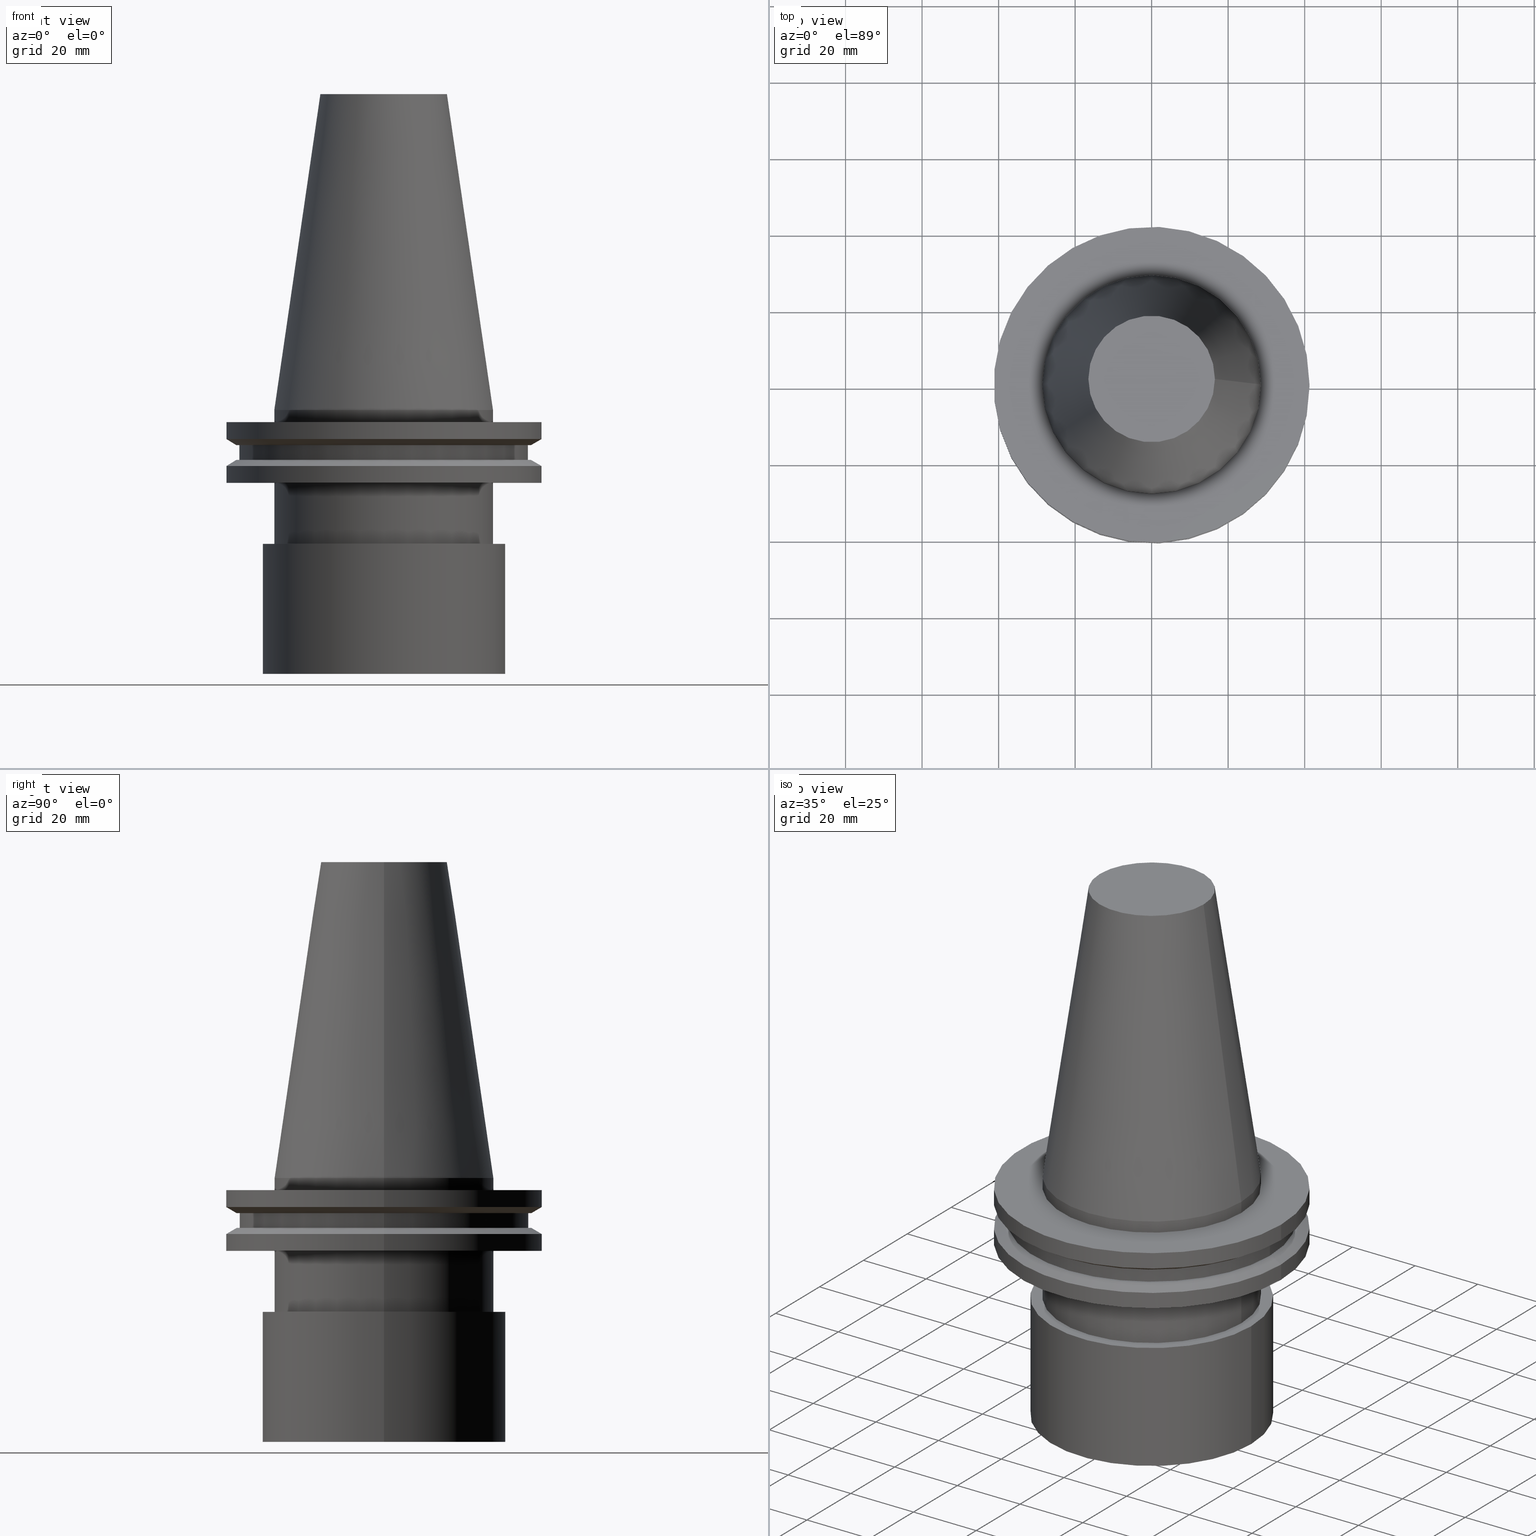
[diagram: canonical four-view strip — front | top / right | iso, engineering-drawing reading convention]
A machine part, canonical four-view strip (front | top / right | iso — engineering-drawing reading convention). The complete STEP part file that produces these views, byte-faithful:
ISO-10303-21;
HEADER;
FILE_DESCRIPTION (( 'STEP AP203' ),
    '1' );
FILE_NAME ('11.326.562.stp',
    '2022-03-09T14:32:26',
    ( '' ),
    ( '' ),
    'SwSTEP 2.0',
    'SolidWorks 2021',
    '' );
FILE_SCHEMA (( 'CONFIG_CONTROL_DESIGN' ));
ENDSEC;

DATA;
#1 = APPROVAL_ROLE ( '' ) ;
#2 = COORDINATED_UNIVERSAL_TIME_OFFSET ( 6, 0, .BEHIND. ) ;
#3 = AXIS2_PLACEMENT_3D ( 'NONE', #253, #117, #25 ) ;
#4 = CYLINDRICAL_SURFACE ( 'NONE', #65, 28.57499999999999218 ) ;
#5 = FACE_OUTER_BOUND ( 'NONE', #79, .T. ) ;
#6 = AXIS2_PLACEMENT_3D ( 'NONE', #147, #171, #203 ) ;
#7 = PRODUCT ( '11.326.562', '11.326.562', '', ( #36 ) ) ;
#8 = ADVANCED_FACE ( 'NONE', ( #379, #222 ), #256, .T. ) ;
#9 = ORGANIZATION ( 'UNSPECIFIED', 'UNSPECIFIED', '' ) ;
#10 = CALENDAR_DATE ( 2022, 9, 3 ) ;
#11 = EDGE_CURVE ( 'NONE', #383, #383, #277, .T. ) ;
#12 = EDGE_LOOP ( 'NONE', ( #283 ) ) ;
#13 = SHAPE_DEFINITION_REPRESENTATION ( #247, #284 ) ;
#14 = EDGE_LOOP ( 'NONE', ( #196 ) ) ;
#15 = CARTESIAN_POINT ( 'NONE',  ( 0.000000000000000000, 0.000000000000000000, -7.605276606597321631 ) ) ;
#16 = DIRECTION ( 'NONE',  ( -0.000000000000000000, -0.000000000000000000, 1.000000000000000000 ) ) ;
#17 = CIRCLE ( 'NONE', #269, 38.50419780457011854 ) ;
#18 = ADVANCED_FACE ( 'NONE', ( #235, #56 ), #62, .F. ) ;
#19 = DIRECTION ( 'NONE',  ( 1.000000000000000000, 0.000000000000000000, 0.000000000000000000 ) ) ;
#20 = ORIENTED_EDGE ( 'NONE', *, *, #69, .T. ) ;
#21 = CIRCLE ( 'NONE', #258, 28.57499999999999929 ) ;
#22 = DIRECTION ( 'NONE',  ( -0.000000000000000000, -0.000000000000000000, 1.000000000000000000 ) ) ;
#23 = CLOSED_SHELL ( 'NONE', ( #39, #366, #210, #28, #146, #115, #104, #318, #18, #8, #275, #127, #213, #137, #55, #102 ) ) ;
#24 = ORIENTED_EDGE ( 'NONE', *, *, #159, .F. ) ;
#25 = DIRECTION ( 'NONE',  ( 1.000000000000000000, 0.000000000000000000, 0.000000000000000000 ) ) ;
#26 = DIRECTION ( 'NONE',  ( -0.000000000000000000, -0.000000000000000000, 1.000000000000000000 ) ) ;
#27 = VERTEX_POINT ( 'NONE', #148 ) ;
#28 = ADVANCED_FACE ( 'NONE', ( #182, #360 ), #207, .F. ) ;
#29 = CARTESIAN_POINT ( 'NONE',  ( 0.000000000000000000, 31.75000000000000000, -34.99999999999999289 ) ) ;
#30 = DATE_AND_TIME ( #243, #100 ) ;
#31 = PLANE ( 'NONE',  #160 ) ;
#32 = CC_DESIGN_DATE_AND_TIME_ASSIGNMENT ( #266, #359, ( #48 ) ) ;
#33 = COORDINATED_UNIVERSAL_TIME_OFFSET ( 6, 0, .BEHIND. ) ;
#34 = CIRCLE ( 'NONE', #63, 16.53634466332832886 ) ;
#35 = DIRECTION ( 'NONE',  ( -0.000000000000000000, -0.000000000000000000, 1.000000000000000000 ) ) ;
#36 = MECHANICAL_CONTEXT ( 'NONE', #317, 'mechanical' ) ;
#37 = DIRECTION ( 'NONE',  ( -0.000000000000000000, -0.000000000000000000, 1.000000000000000000 ) ) ;
#38 = CARTESIAN_POINT ( 'NONE',  ( 0.000000000000000000, 0.000000000000000000, 82.54999999999999716 ) ) ;
#39 = ADVANCED_FACE ( 'NONE', ( #299, #238 ), #361, .T. ) ;
#40 = CYLINDRICAL_SURFACE ( 'NONE', #205, 28.57499999999999929 ) ;
#41 = ORIENTED_EDGE ( 'NONE', *, *, #272, .T. ) ;
#42 = CC_DESIGN_SECURITY_CLASSIFICATION ( #48, ( #114 ) ) ;
#43 = EDGE_CURVE ( 'NONE', #289, #289, #77, .T. ) ;
#44 = EDGE_LOOP ( 'NONE', ( #20 ) ) ;
#45 = EDGE_LOOP ( 'NONE', ( #112 ) ) ;
#46 = ORIENTED_EDGE ( 'NONE', *, *, #236, .F. ) ;
#47 = CARTESIAN_POINT ( 'NONE',  ( 0.000000000000000000, 0.000000000000000000, 82.54999999999999716 ) ) ;
#48 = SECURITY_CLASSIFICATION ( '', '', #96 ) ;
#49 = ORIENTED_EDGE ( 'NONE', *, *, #191, .F. ) ;
#50 = CARTESIAN_POINT ( 'NONE',  ( 37.70499999999999829, 0.000000000000000000, -9.205000000000005400 ) ) ;
#51 = EDGE_LOOP ( 'NONE', ( #351 ) ) ;
#52 = CARTESIAN_POINT ( 'NONE',  ( 0.000000000000000000, 0.000000000000000000, -14.65472339340269414 ) ) ;
#53 = CARTESIAN_POINT ( 'NONE',  ( 0.000000000000000000, 0.000000000000000000, -68.98999999999999488 ) ) ;
#54 = VERTEX_POINT ( 'NONE', #232 ) ;
#55 = ADVANCED_FACE ( 'NONE', ( #155, #89 ), #241, .T. ) ;
#56 = FACE_BOUND ( 'NONE', #136, .T. ) ;
#57 = CIRCLE ( 'NONE', #276, 41.27499999999999147 ) ;
#58 = FACE_OUTER_BOUND ( 'NONE', #162, .T. ) ;
#59 = CARTESIAN_POINT ( 'NONE',  ( 0.000000000000000000, 0.000000000000000000, -19.04999999999999716 ) ) ;
#60 = FACE_OUTER_BOUND ( 'NONE', #194, .T. ) ;
#61 =( NAMED_UNIT ( * ) PLANE_ANGLE_UNIT ( ) SI_UNIT ( $, .RADIAN. ) );
#62 = PLANE ( 'NONE',  #380 ) ;
#63 = AXIS2_PLACEMENT_3D ( 'NONE', #108, #255, #320 ) ;
#64 = DIRECTION ( 'NONE',  ( 1.000000000000000000, 0.000000000000000000, 0.000000000000000000 ) ) ;
#65 = AXIS2_PLACEMENT_3D ( 'NONE', #220, #68, #130 ) ;
#66 = CARTESIAN_POINT ( 'NONE',  ( 0.000000000000000000, 0.000000000000000000, 82.54999999999999716 ) ) ;
#67 = PERSON_AND_ORGANIZATION_ROLE ( 'creator' ) ;
#68 = DIRECTION ( 'NONE',  ( -0.000000000000000000, -0.000000000000000000, 1.000000000000000000 ) ) ;
#69 = EDGE_CURVE ( 'NONE', #140, #140, #21, .T. ) ;
#70 = ORIENTED_EDGE ( 'NONE', *, *, #280, .T. ) ;
#71 = APPROVAL ( #239, 'UNSPECIFIED' ) ;
#72 = DIRECTION ( 'NONE',  ( -0.000000000000000000, -0.000000000000000000, 1.000000000000000000 ) ) ;
#73 = AXIS2_PLACEMENT_3D ( 'NONE', #358, #332, #92 ) ;
#74 = ORIENTED_EDGE ( 'NONE', *, *, #43, .F. ) ;
#75 = EDGE_LOOP ( 'NONE', ( #343 ) ) ;
#76 = ORIENTED_EDGE ( 'NONE', *, *, #69, .F. ) ;
#77 = CIRCLE ( 'NONE', #73, 41.27499999999999147 ) ;
#78 = CARTESIAN_POINT ( 'NONE',  ( 0.000000000000000000, 0.000000000000000000, -9.205000000000005400 ) ) ;
#79 = EDGE_LOOP ( 'NONE', ( #164 ) ) ;
#80 = CARTESIAN_POINT ( 'NONE',  ( 28.57499999999999929, 0.000000000000000000, -19.04999999999999716 ) ) ;
#81 = AXIS2_PLACEMENT_3D ( 'NONE', #357, #381, #330 ) ;
#82 = ORIENTED_EDGE ( 'NONE', *, *, #107, .T. ) ;
#83 = AXIS2_PLACEMENT_3D ( 'NONE', #356, #329, #132 ) ;
#84 = CARTESIAN_POINT ( 'NONE',  ( 41.27499999999999147, 0.000000000000000000, -19.04999999999999716 ) ) ;
#85 = CARTESIAN_POINT ( 'NONE',  ( 0.000000000000000000, 0.000000000000000000, 0.000000000000000000 ) ) ;
#86 = DIRECTION ( 'NONE',  ( 1.000000000000000000, 0.000000000000000000, 0.000000000000000000 ) ) ;
#87 = DIRECTION ( 'NONE',  ( -1.000000000000000000, 0.000000000000000000, -0.000000000000000000 ) ) ;
#88 = CARTESIAN_POINT ( 'NONE',  ( 37.70499999999999829, 0.000000000000000000, -13.05499999999999794 ) ) ;
#89 = FACE_OUTER_BOUND ( 'NONE', #12, .T. ) ;
#90 = AXIS2_PLACEMENT_3D ( 'NONE', #15, #22, #350 ) ;
#91 = PERSON_AND_ORGANIZATION ( #192, #9 ) ;
#92 = DIRECTION ( 'NONE',  ( 1.000000000000000000, 0.000000000000000000, 0.000000000000000000 ) ) ;
#93 = DIRECTION ( 'NONE',  ( -1.000000000000000000, 0.000000000000000000, -0.000000000000000000 ) ) ;
#94 = APPLICATION_PROTOCOL_DEFINITION ( 'international standard', 'config_control_design', 1994, #110 ) ;
#95 = EDGE_CURVE ( 'NONE', #202, #202, #124, .T. ) ;
#96 = SECURITY_CLASSIFICATION_LEVEL ( 'unclassified' ) ;
#97 = ORIENTED_EDGE ( 'NONE', *, *, #95, .T. ) ;
#98 = CC_DESIGN_PERSON_AND_ORGANIZATION_ASSIGNMENT ( #245, #67, ( #311 ) ) ;
#99 = DIRECTION ( 'NONE',  ( -0.000000000000000000, -0.000000000000000000, 1.000000000000000000 ) ) ;
#100 = LOCAL_TIME ( 8, 32, 26.00000000000000000, #2 ) ;
#101 = AXIS2_PLACEMENT_3D ( 'NONE', #52, #138, #19 ) ;
#102 = ADVANCED_FACE ( 'NONE', ( #301, #60 ), #31, .F. ) ;
#103 = FACE_OUTER_BOUND ( 'NONE', #287, .T. ) ;
#104 = ADVANCED_FACE ( 'NONE', ( #270, #394 ), #151, .F. ) ;
#105 = EDGE_LOOP ( 'NONE', ( #321 ) ) ;
#106 = EDGE_LOOP ( 'NONE', ( #41 ) ) ;
#107 = EDGE_CURVE ( 'NONE', #328, #328, #348, .T. ) ;
#108 = CARTESIAN_POINT ( 'NONE',  ( 0.000000000000000000, 0.000000000000000000, 82.55000000000001137 ) ) ;
#109 = DIRECTION ( 'NONE',  ( 1.000000000000000000, 0.000000000000000000, 0.000000000000000000 ) ) ;
#110 = APPLICATION_CONTEXT ( 'configuration controlled 3d designs of mechanical parts and assemblies' ) ;
#111 = DIRECTION ( 'NONE',  ( -0.000000000000000000, -0.000000000000000000, 1.000000000000000000 ) ) ;
#112 = ORIENTED_EDGE ( 'NONE', *, *, #375, .T. ) ;
#113 = DIRECTION ( 'NONE',  ( -0.000000000000000000, -0.000000000000000000, 1.000000000000000000 ) ) ;
#114 = PRODUCT_DEFINITION_FORMATION_WITH_SPECIFIED_SOURCE ( 'ANY', '', #7, .NOT_KNOWN. ) ;
#115 = ADVANCED_FACE ( 'NONE', ( #265, #354 ), #198, .T. ) ;
#116 = DIRECTION ( 'NONE',  ( 1.000000000000000000, 0.000000000000000000, 0.000000000000000000 ) ) ;
#117 = DIRECTION ( 'NONE',  ( -0.000000000000000000, -0.000000000000000000, 1.000000000000000000 ) ) ;
#118 = PLANE ( 'NONE',  #83 ) ;
#119 = VERTEX_POINT ( 'NONE', #296 ) ;
#120 = DIRECTION ( 'NONE',  ( 0.000000000000000000, 0.000000000000000000, -1.000000000000000000 ) ) ;
#121 = EDGE_CURVE ( 'NONE', #197, #197, #288, .T. ) ;
#122 = CARTESIAN_POINT ( 'NONE',  ( 0.000000000000000000, 37.70499999999999829, -13.05500000000000149 ) ) ;
#123 = PERSON_AND_ORGANIZATION ( #192, #9 ) ;
#124 = CIRCLE ( 'NONE', #6, 37.70499999999999829 ) ;
#125 = DATE_AND_TIME ( #364, #218 ) ;
#126 = DIRECTION ( 'NONE',  ( 1.000000000000000000, 0.000000000000000000, 0.000000000000000000 ) ) ;
#127 = ADVANCED_FACE ( 'NONE', ( #391, #387 ), #118, .F. ) ;
#128 = AXIS2_PLACEMENT_3D ( 'NONE', #78, #261, #143 ) ;
#129 = APPROVAL_DATE_TIME ( #30, #71 ) ;
#130 = DIRECTION ( 'NONE',  ( 1.000000000000000000, 0.000000000000000000, 0.000000000000000000 ) ) ;
#131 = AXIS2_PLACEMENT_3D ( 'NONE', #178, #206, #174 ) ;
#132 = DIRECTION ( 'NONE',  ( -1.000000000000000000, 0.000000000000000000, -0.000000000000000000 ) ) ;
#133 =( GEOMETRIC_REPRESENTATION_CONTEXT ( 3 ) GLOBAL_UNCERTAINTY_ASSIGNED_CONTEXT ( ( #314 ) ) GLOBAL_UNIT_ASSIGNED_CONTEXT ( ( #335, #61, #208 ) ) REPRESENTATION_CONTEXT ( 'NONE', 'WORKASPACE' ) );
#134 = APPROVAL_DATE_TIME ( #223, #323 ) ;
#135 = CIRCLE ( 'NONE', #352, 31.75000000000000000 ) ;
#136 = EDGE_LOOP ( 'NONE', ( #82 ) ) ;
#137 = ADVANCED_FACE ( 'NONE', ( #309 ), #367, .F. ) ;
#138 = DIRECTION ( 'NONE',  ( -0.000000000000000000, -0.000000000000000000, 1.000000000000000000 ) ) ;
#139 = DIRECTION ( 'NONE',  ( 1.000000000000000000, 0.000000000000000000, 0.000000000000000000 ) ) ;
#140 = VERTEX_POINT ( 'NONE', #80 ) ;
#141 = EDGE_LOOP ( 'NONE', ( #374 ) ) ;
#142 = AXIS2_PLACEMENT_3D ( 'NONE', #252, #16, #139 ) ;
#143 = DIRECTION ( 'NONE',  ( 1.000000000000000000, 0.000000000000000000, 0.000000000000000000 ) ) ;
#144 = ORIENTED_EDGE ( 'NONE', *, *, #191, .T. ) ;
#145 = CARTESIAN_POINT ( 'NONE',  ( 38.50419780457011854, 0.000000000000000000, -9.205000000000005400 ) ) ;
#146 = ADVANCED_FACE ( 'NONE', ( #163, #5 ), #249, .T. ) ;
#147 = CARTESIAN_POINT ( 'NONE',  ( 0.000000000000000000, 0.000000000000000000, -13.05499999999999794 ) ) ;
#148 = CARTESIAN_POINT ( 'NONE',  ( 41.27499999999999147, 0.000000000000000000, -3.174999999999997158 ) ) ;
#149 = CC_DESIGN_PERSON_AND_ORGANIZATION_ASSIGNMENT ( #339, #150, ( #48 ) ) ;
#150 = PERSON_AND_ORGANIZATION_ROLE ( 'classification_officer' ) ;
#151 = PLANE ( 'NONE',  #242 ) ;
#152 = APPROVAL_PERSON_ORGANIZATION ( #91, #323, #302 ) ;
#153 = CARTESIAN_POINT ( 'NONE',  ( 0.000000000000000000, 38.50419780457011854, -9.205000000000001847 ) ) ;
#154 = DIRECTION ( 'NONE',  ( 0.000000000000000000, 0.000000000000000000, 1.000000000000000000 ) ) ;
#155 = FACE_OUTER_BOUND ( 'NONE', #254, .T. ) ;
#156 = PERSON_AND_ORGANIZATION ( #192, #9 ) ;
#157 = CARTESIAN_POINT ( 'NONE',  ( 0.000000000000000000, 0.000000000000000000, 0.000000000000000000 ) ) ;
#158 = DIRECTION ( 'NONE',  ( 0.000000000000000000, -0.000000000000000000, 1.000000000000000000 ) ) ;
#159 = EDGE_CURVE ( 'NONE', #168, #168, #135, .T. ) ;
#160 = AXIS2_PLACEMENT_3D ( 'NONE', #29, #273, #87 ) ;
#161 = EDGE_LOOP ( 'NONE', ( #376 ) ) ;
#162 = EDGE_LOOP ( 'NONE', ( #384 ) ) ;
#163 = FACE_OUTER_BOUND ( 'NONE', #219, .T. ) ;
#164 = ORIENTED_EDGE ( 'NONE', *, *, #43, .T. ) ;
#165 = FACE_OUTER_BOUND ( 'NONE', #45, .T. ) ;
#166 = AXIS2_PLACEMENT_3D ( 'NONE', #371, #99, #217 ) ;
#167 = EDGE_LOOP ( 'NONE', ( #193 ) ) ;
#168 = VERTEX_POINT ( 'NONE', #291 ) ;
#169 = EDGE_LOOP ( 'NONE', ( #199 ) ) ;
#170 = CARTESIAN_POINT ( 'NONE',  ( 41.27500000000000568, 0.000000000000000000, -7.605276606597321631 ) ) ;
#171 = DIRECTION ( 'NONE',  ( -0.000000000000000000, -0.000000000000000000, 1.000000000000000000 ) ) ;
#172 = CARTESIAN_POINT ( 'NONE',  ( 28.57499999999999929, 0.000000000000000000, -34.99999999999999289 ) ) ;
#173 = CIRCLE ( 'NONE', #224, 28.57499999999999929 ) ;
#174 = DIRECTION ( 'NONE',  ( 1.000000000000000000, 0.000000000000000000, 0.000000000000000000 ) ) ;
#175 = CALENDAR_DATE ( 2022, 9, 3 ) ;
#176 = APPROVAL_STATUS ( 'not_yet_approved' ) ;
#177 = AXIS2_PLACEMENT_3D ( 'NONE', #201, #120, #209 ) ;
#178 = CARTESIAN_POINT ( 'NONE',  ( 0.000000000000000000, 41.27499999999999147, -19.04999999999999716 ) ) ;
#179 = CC_DESIGN_APPROVAL ( #323, ( #48 ) ) ;
#180 = APPROVAL ( #211, 'UNSPECIFIED' ) ;
#181 = AXIS2_PLACEMENT_3D ( 'NONE', #157, #154, #64 ) ;
#182 = FACE_OUTER_BOUND ( 'NONE', #257, .T. ) ;
#183 = CIRCLE ( 'NONE', #128, 38.50419780457011854 ) ;
#184 = DATE_TIME_ROLE ( 'creation_date' ) ;
#185 = DIRECTION ( 'NONE',  ( -0.000000000000000000, -0.000000000000000000, 1.000000000000000000 ) ) ;
#186 = DATE_AND_TIME ( #333, #231 ) ;
#187 = EDGE_LOOP ( 'NONE', ( #97 ) ) ;
#188 = AXIS2_PLACEMENT_3D ( 'NONE', #313, #158, #126 ) ;
#189 = DIRECTION ( 'NONE',  ( 1.000000000000000000, 0.000000000000000000, 0.000000000000000000 ) ) ;
#190 = EDGE_LOOP ( 'NONE', ( #382 ) ) ;
#191 = EDGE_CURVE ( 'NONE', #54, #54, #342, .T. ) ;
#192 = PERSON ( 'UNSPECIFIED', 'UNSPECIFIED', 'UNSPECIFIED', ('UNSPECIFIED'), ('UNSPECIFIED'), ('UNSPECIFIED') ) ;
#193 = ORIENTED_EDGE ( 'NONE', *, *, #11, .T. ) ;
#194 = EDGE_LOOP ( 'NONE', ( #319 ) ) ;
#195 = CYLINDRICAL_SURFACE ( 'NONE', #372, 37.70499999999999829 ) ;
#196 = ORIENTED_EDGE ( 'NONE', *, *, #308, .T. ) ;
#197 = VERTEX_POINT ( 'NONE', #228 ) ;
#198 = CONICAL_SURFACE ( 'NONE', #345, 41.27500000000000568, 1.047197551196589860 ) ;
#199 = ORIENTED_EDGE ( 'NONE', *, *, #107, .F. ) ;
#200 = CARTESIAN_POINT ( 'NONE',  ( 38.50419780457011854, 0.000000000000000000, -13.05500000000001037 ) ) ;
#201 = CARTESIAN_POINT ( 'NONE',  ( 0.000000000000000000, 0.000000000000000000, 0.000000000000000000 ) ) ;
#202 = VERTEX_POINT ( 'NONE', #88 ) ;
#203 = DIRECTION ( 'NONE',  ( 1.000000000000000000, 0.000000000000000000, 0.000000000000000000 ) ) ;
#204 = FACE_OUTER_BOUND ( 'NONE', #315, .T. ) ;
#205 = AXIS2_PLACEMENT_3D ( 'NONE', #66, #185, #189 ) ;
#206 = DIRECTION ( 'NONE',  ( 0.000000000000000000, -0.000000000000000000, 1.000000000000000000 ) ) ;
#207 = PLANE ( 'NONE',  #131 ) ;
#208 =( NAMED_UNIT ( * ) SI_UNIT ( $, .STERADIAN. ) SOLID_ANGLE_UNIT ( ) );
#209 = DIRECTION ( 'NONE',  ( -1.000000000000000000, 0.000000000000000000, 0.000000000000000000 ) ) ;
#210 = ADVANCED_FACE ( 'NONE', ( #341, #103 ), #40, .T. ) ;
#211 = APPROVAL_STATUS ( 'not_yet_approved' ) ;
#212 = CC_DESIGN_APPROVAL ( #180, ( #114 ) ) ;
#213 = ADVANCED_FACE ( 'NONE', ( #373, #395 ), #4, .T. ) ;
#214 = PERSON_AND_ORGANIZATION ( #192, #9 ) ;
#215 = APPROVAL_ROLE ( '' ) ;
#216 = EDGE_CURVE ( 'NONE', #353, #353, #17, .T. ) ;
#217 = DIRECTION ( 'NONE',  ( 1.000000000000000000, 0.000000000000000000, 0.000000000000000000 ) ) ;
#218 = LOCAL_TIME ( 8, 32, 26.00000000000000000, #271 ) ;
#219 = EDGE_LOOP ( 'NONE', ( #260 ) ) ;
#220 = CARTESIAN_POINT ( 'NONE',  ( 0.000000000000000000, 0.000000000000000000, 82.54999999999999716 ) ) ;
#221 = EDGE_LOOP ( 'NONE', ( #76 ) ) ;
#222 = FACE_BOUND ( 'NONE', #106, .T. ) ;
#223 = DATE_AND_TIME ( #10, #229 ) ;
#224 = AXIS2_PLACEMENT_3D ( 'NONE', #259, #355, #234 ) ;
#225 = ORIENTED_EDGE ( 'NONE', *, *, #262, .T. ) ;
#226 = CYLINDRICAL_SURFACE ( 'NONE', #3, 41.27499999999999858 ) ;
#227 = EDGE_LOOP ( 'NONE', ( #290 ) ) ;
#228 = CARTESIAN_POINT ( 'NONE',  ( 31.75000000000000000, 0.000000000000000000, -68.98999999999999488 ) ) ;
#229 = LOCAL_TIME ( 8, 32, 26.00000000000000000, #370 ) ;
#230 = EDGE_LOOP ( 'NONE', ( #144 ) ) ;
#231 = LOCAL_TIME ( 8, 32, 26.00000000000000000, #33 ) ;
#232 = CARTESIAN_POINT ( 'NONE',  ( 28.57499999999999218, 0.000000000000000000, 0.000000000000000000 ) ) ;
#233 = DIRECTION ( 'NONE',  ( -0.000000000000000000, -0.000000000000000000, 1.000000000000000000 ) ) ;
#234 = DIRECTION ( 'NONE',  ( 1.000000000000000000, 0.000000000000000000, 0.000000000000000000 ) ) ;
#235 = FACE_OUTER_BOUND ( 'NONE', #161, .T. ) ;
#236 = EDGE_CURVE ( 'NONE', #326, #326, #282, .T. ) ;
#237 = DIRECTION ( 'NONE',  ( 1.000000000000000000, 0.000000000000000000, 0.000000000000000000 ) ) ;
#238 = FACE_OUTER_BOUND ( 'NONE', #230, .T. ) ;
#239 = APPROVAL_STATUS ( 'not_yet_approved' ) ;
#240 = DIRECTION ( 'NONE',  ( 0.000000000000000000, -0.000000000000000000, 1.000000000000000000 ) ) ;
#241 = CYLINDRICAL_SURFACE ( 'NONE', #295, 31.75000000000000000 ) ;
#242 = AXIS2_PLACEMENT_3D ( 'NONE', #122, #306, #93 ) ;
#243 = CALENDAR_DATE ( 2022, 9, 3 ) ;
#244 = CARTESIAN_POINT ( 'NONE',  ( 0.000000000000000000, 0.000000000000000000, -34.99999999999999289 ) ) ;
#245 = PERSON_AND_ORGANIZATION ( #192, #9 ) ;
#246 = CARTESIAN_POINT ( 'NONE',  ( 0.000000000000000000, 0.000000000000000000, -13.05500000000001037 ) ) ;
#247 = PRODUCT_DEFINITION_SHAPE ( 'NONE', 'NONE',  #311 ) ;
#248 = DIRECTION ( 'NONE',  ( 1.000000000000000000, 0.000000000000000000, 0.000000000000000000 ) ) ;
#249 = CYLINDRICAL_SURFACE ( 'NONE', #331, 41.27499999999999858 ) ;
#250 = AXIS2_PLACEMENT_3D ( 'NONE', #53, #26, #263 ) ;
#251 = EDGE_LOOP ( 'NONE', ( #294 ) ) ;
#252 = CARTESIAN_POINT ( 'NONE',  ( 0.000000000000000000, 0.000000000000000000, -3.174999999999997158 ) ) ;
#253 = CARTESIAN_POINT ( 'NONE',  ( 0.000000000000000000, 0.000000000000000000, 82.54999999999999716 ) ) ;
#254 = EDGE_LOOP ( 'NONE', ( #24 ) ) ;
#255 = DIRECTION ( 'NONE',  ( -0.000000000000000000, -0.000000000000000000, 1.000000000000000000 ) ) ;
#256 = CONICAL_SURFACE ( 'NONE', #293, 38.50419780457011854, 1.047197551196589860 ) ;
#257 = EDGE_LOOP ( 'NONE', ( #74 ) ) ;
#258 = AXIS2_PLACEMENT_3D ( 'NONE', #59, #334, #336 ) ;
#259 = CARTESIAN_POINT ( 'NONE',  ( 0.000000000000000000, 0.000000000000000000, -34.99999999999999289 ) ) ;
#260 = ORIENTED_EDGE ( 'NONE', *, *, #262, .F. ) ;
#261 = DIRECTION ( 'NONE',  ( -0.000000000000000000, -0.000000000000000000, 1.000000000000000000 ) ) ;
#262 = EDGE_CURVE ( 'NONE', #119, #119, #310, .T. ) ;
#263 = DIRECTION ( 'NONE',  ( 1.000000000000000000, 0.000000000000000000, 0.000000000000000000 ) ) ;
#264 = VERTEX_POINT ( 'NONE', #274 ) ;
#265 = FACE_BOUND ( 'NONE', #227, .T. ) ;
#266 = DATE_AND_TIME ( #175, #322 ) ;
#267 = DIRECTION ( 'NONE',  ( 0.000000000000000000, 0.000000000000000000, -1.000000000000000000 ) ) ;
#268 = PERSON_AND_ORGANIZATION_ROLE ( 'creator' ) ;
#269 = AXIS2_PLACEMENT_3D ( 'NONE', #246, #369, #365 ) ;
#270 = FACE_BOUND ( 'NONE', #105, .T. ) ;
#271 = COORDINATED_UNIVERSAL_TIME_OFFSET ( 6, 0, .BEHIND. ) ;
#272 = EDGE_CURVE ( 'NONE', #388, #388, #183, .T. ) ;
#273 = DIRECTION ( 'NONE',  ( 0.000000000000000000, 0.000000000000000000, -1.000000000000000000 ) ) ;
#274 = CARTESIAN_POINT ( 'NONE',  ( 16.53634466332832886, 0.000000000000000000, 82.55000000000001137 ) ) ;
#275 = ADVANCED_FACE ( 'NONE', ( #204, #58 ), #226, .T. ) ;
#276 = AXIS2_PLACEMENT_3D ( 'NONE', #347, #113, #86 ) ;
#277 = CIRCLE ( 'NONE', #142, 28.57499999999999218 ) ;
#278 = AXIS2_PLACEMENT_3D ( 'NONE', #362, #35, #116 ) ;
#279 = DESIGN_CONTEXT ( 'detailed design', #110, 'design' ) ;
#280 = EDGE_CURVE ( 'NONE', #386, #386, #173, .T. ) ;
#281 = CC_DESIGN_APPROVAL ( #71, ( #311 ) ) ;
#282 = CIRCLE ( 'NONE', #90, 41.27500000000000568 ) ;
#283 = ORIENTED_EDGE ( 'NONE', *, *, #121, .T. ) ;
#284 = ADVANCED_BREP_SHAPE_REPRESENTATION ( '11.326.562', ( #377, #181 ), #133 ) ;
#285 = DIRECTION ( 'NONE',  ( -0.000000000000000000, -0.000000000000000000, 1.000000000000000000 ) ) ;
#286 = FACE_OUTER_BOUND ( 'NONE', #169, .T. ) ;
#287 = EDGE_LOOP ( 'NONE', ( #70 ) ) ;
#288 = CIRCLE ( 'NONE', #250, 31.75000000000000000 ) ;
#289 = VERTEX_POINT ( 'NONE', #84 ) ;
#290 = ORIENTED_EDGE ( 'NONE', *, *, #216, .F. ) ;
#291 = CARTESIAN_POINT ( 'NONE',  ( 31.75000000000000000, 0.000000000000000000, -34.99999999999999289 ) ) ;
#292 = CC_DESIGN_PERSON_AND_ORGANIZATION_ASSIGNMENT ( #307, #268, ( #114 ) ) ;
#293 = AXIS2_PLACEMENT_3D ( 'NONE', #316, #285, #109 ) ;
#294 = ORIENTED_EDGE ( 'NONE', *, *, #216, .T. ) ;
#295 = AXIS2_PLACEMENT_3D ( 'NONE', #85, #233, #303 ) ;
#296 = CARTESIAN_POINT ( 'NONE',  ( 41.27500000000000568, 0.000000000000000000, -14.65472339340269414 ) ) ;
#297 = DIRECTION ( 'NONE',  ( 1.000000000000000000, 0.000000000000000000, 0.000000000000000000 ) ) ;
#298 = CARTESIAN_POINT ( 'NONE',  ( 28.57499999999999218, 0.000000000000000000, -3.174999999999997158 ) ) ;
#299 = FACE_BOUND ( 'NONE', #141, .T. ) ;
#300 = COORDINATED_UNIVERSAL_TIME_OFFSET ( 6, 0, .BEHIND. ) ;
#301 = FACE_BOUND ( 'NONE', #75, .T. ) ;
#302 = APPROVAL_ROLE ( '' ) ;
#303 = DIRECTION ( 'NONE',  ( 1.000000000000000000, 0.000000000000000000, 0.000000000000000000 ) ) ;
#304 = CC_DESIGN_PERSON_AND_ORGANIZATION_ASSIGNMENT ( #123, #305, ( #7 ) ) ;
#305 = PERSON_AND_ORGANIZATION_ROLE ( 'design_owner' ) ;
#306 = DIRECTION ( 'NONE',  ( 0.000000000000000000, 0.000000000000000000, -1.000000000000000000 ) ) ;
#307 = PERSON_AND_ORGANIZATION ( #192, #9 ) ;
#308 = EDGE_CURVE ( 'NONE', #27, #27, #57, .T. ) ;
#309 = FACE_OUTER_BOUND ( 'NONE', #51, .T. ) ;
#310 = CIRCLE ( 'NONE', #101, 41.27500000000000568 ) ;
#311 = PRODUCT_DEFINITION ( 'UNKNOWN', '', #114, #279 ) ;
#312 = DIRECTION ( 'NONE',  ( 1.000000000000000000, 0.000000000000000000, 0.000000000000000000 ) ) ;
#313 = CARTESIAN_POINT ( 'NONE',  ( 0.000000000000000000, 31.75000000000000000, -68.98999999999999488 ) ) ;
#314 = UNCERTAINTY_MEASURE_WITH_UNIT (LENGTH_MEASURE( 1.000000000000000082E-05 ), #335, 'distance_accuracy_value', 'NONE');
#315 = EDGE_LOOP ( 'NONE', ( #325 ) ) ;
#316 = CARTESIAN_POINT ( 'NONE',  ( 0.000000000000000000, 0.000000000000000000, -9.205000000000005400 ) ) ;
#317 = APPLICATION_CONTEXT ( 'configuration controlled 3d designs of mechanical parts and assemblies' ) ;
#318 = ADVANCED_FACE ( 'NONE', ( #286, #378 ), #195, .T. ) ;
#319 = ORIENTED_EDGE ( 'NONE', *, *, #159, .T. ) ;
#320 = DIRECTION ( 'NONE',  ( 1.000000000000000000, 0.000000000000000000, 0.000000000000000000 ) ) ;
#321 = ORIENTED_EDGE ( 'NONE', *, *, #95, .F. ) ;
#322 = LOCAL_TIME ( 8, 32, 26.00000000000000000, #300 ) ;
#323 = APPROVAL ( #176, 'UNSPECIFIED' ) ;
#324 = PLANE ( 'NONE',  #81 ) ;
#325 = ORIENTED_EDGE ( 'NONE', *, *, #308, .F. ) ;
#326 = VERTEX_POINT ( 'NONE', #170 ) ;
#327 = CARTESIAN_POINT ( 'NONE',  ( 0.000000000000000000, 0.000000000000000000, -14.65472339340269414 ) ) ;
#328 = VERTEX_POINT ( 'NONE', #50 ) ;
#329 = DIRECTION ( 'NONE',  ( 0.000000000000000000, 0.000000000000000000, -1.000000000000000000 ) ) ;
#330 = DIRECTION ( 'NONE',  ( -1.000000000000000000, 0.000000000000000000, -0.000000000000000000 ) ) ;
#331 = AXIS2_PLACEMENT_3D ( 'NONE', #38, #72, #312 ) ;
#332 = DIRECTION ( 'NONE',  ( -0.000000000000000000, -0.000000000000000000, 1.000000000000000000 ) ) ;
#333 = CALENDAR_DATE ( 2022, 9, 3 ) ;
#334 = DIRECTION ( 'NONE',  ( -0.000000000000000000, -0.000000000000000000, 1.000000000000000000 ) ) ;
#335 =( LENGTH_UNIT ( ) NAMED_UNIT ( * ) SI_UNIT ( .MILLI., .METRE. ) );
#336 = DIRECTION ( 'NONE',  ( 1.000000000000000000, 0.000000000000000000, 0.000000000000000000 ) ) ;
#337 = APPROVAL_DATE_TIME ( #186, #180 ) ;
#338 = APPROVAL_PERSON_ORGANIZATION ( #214, #180, #215 ) ;
#339 = PERSON_AND_ORGANIZATION ( #192, #9 ) ;
#340 = CC_DESIGN_PERSON_AND_ORGANIZATION_ASSIGNMENT ( #392, #368, ( #114 ) ) ;
#341 = FACE_OUTER_BOUND ( 'NONE', #221, .T. ) ;
#342 = CIRCLE ( 'NONE', #166, 28.57499999999999218 ) ;
#343 = ORIENTED_EDGE ( 'NONE', *, *, #280, .F. ) ;
#344 = EDGE_LOOP ( 'NONE', ( #225 ) ) ;
#345 = AXIS2_PLACEMENT_3D ( 'NONE', #327, #267, #389 ) ;
#346 = EDGE_LOOP ( 'NONE', ( #46 ) ) ;
#347 = CARTESIAN_POINT ( 'NONE',  ( 0.000000000000000000, 0.000000000000000000, -3.174999999999997158 ) ) ;
#348 = CIRCLE ( 'NONE', #278, 37.70499999999999829 ) ;
#349 = EDGE_LOOP ( 'NONE', ( #49 ) ) ;
#350 = DIRECTION ( 'NONE',  ( 1.000000000000000000, 0.000000000000000000, 0.000000000000000000 ) ) ;
#351 = ORIENTED_EDGE ( 'NONE', *, *, #121, .F. ) ;
#352 = AXIS2_PLACEMENT_3D ( 'NONE', #244, #37, #248 ) ;
#353 = VERTEX_POINT ( 'NONE', #200 ) ;
#354 = FACE_OUTER_BOUND ( 'NONE', #344, .T. ) ;
#355 = DIRECTION ( 'NONE',  ( -0.000000000000000000, -0.000000000000000000, 1.000000000000000000 ) ) ;
#356 = CARTESIAN_POINT ( 'NONE',  ( 0.000000000000000000, 41.27499999999999147, -3.174999999999994493 ) ) ;
#357 = CARTESIAN_POINT ( 'NONE',  ( 0.000000000000000000, 16.53634466332832886, 82.55000000000001137 ) ) ;
#358 = CARTESIAN_POINT ( 'NONE',  ( 0.000000000000000000, 0.000000000000000000, -19.04999999999999716 ) ) ;
#359 = DATE_TIME_ROLE ( 'classification_date' ) ;
#360 = FACE_BOUND ( 'NONE', #44, .T. ) ;
#361 = CONICAL_SURFACE ( 'NONE', #177, 28.57499999999999218, 0.1448138465474119174 ) ;
#362 = CARTESIAN_POINT ( 'NONE',  ( 0.000000000000000000, 0.000000000000000000, -9.205000000000005400 ) ) ;
#363 = PRODUCT_RELATED_PRODUCT_CATEGORY ( 'detail', '', ( #7 ) ) ;
#364 = CALENDAR_DATE ( 2022, 9, 3 ) ;
#365 = DIRECTION ( 'NONE',  ( 1.000000000000000000, 0.000000000000000000, 0.000000000000000000 ) ) ;
#366 = ADVANCED_FACE ( 'NONE', ( #165 ), #324, .F. ) ;
#367 = PLANE ( 'NONE',  #188 ) ;
#368 = PERSON_AND_ORGANIZATION_ROLE ( 'design_supplier' ) ;
#369 = DIRECTION ( 'NONE',  ( -0.000000000000000000, -0.000000000000000000, 1.000000000000000000 ) ) ;
#370 = COORDINATED_UNIVERSAL_TIME_OFFSET ( 6, 0, .BEHIND. ) ;
#371 = CARTESIAN_POINT ( 'NONE',  ( 0.000000000000000000, 0.000000000000000000, 0.000000000000000000 ) ) ;
#372 = AXIS2_PLACEMENT_3D ( 'NONE', #47, #111, #237 ) ;
#373 = FACE_OUTER_BOUND ( 'NONE', #349, .T. ) ;
#374 = ORIENTED_EDGE ( 'NONE', *, *, #375, .F. ) ;
#375 = EDGE_CURVE ( 'NONE', #264, #264, #34, .T. ) ;
#376 = ORIENTED_EDGE ( 'NONE', *, *, #272, .F. ) ;
#377 = MANIFOLD_SOLID_BREP ( 'CKB', #23 ) ;
#378 = FACE_OUTER_BOUND ( 'NONE', #187, .T. ) ;
#379 = FACE_OUTER_BOUND ( 'NONE', #346, .T. ) ;
#380 = AXIS2_PLACEMENT_3D ( 'NONE', #153, #240, #297 ) ;
#381 = DIRECTION ( 'NONE',  ( 0.000000000000000000, 0.000000000000000000, -1.000000000000000000 ) ) ;
#382 = ORIENTED_EDGE ( 'NONE', *, *, #11, .F. ) ;
#383 = VERTEX_POINT ( 'NONE', #298 ) ;
#384 = ORIENTED_EDGE ( 'NONE', *, *, #236, .T. ) ;
#385 = APPROVAL_PERSON_ORGANIZATION ( #156, #71, #1 ) ;
#386 = VERTEX_POINT ( 'NONE', #172 ) ;
#387 = FACE_OUTER_BOUND ( 'NONE', #14, .T. ) ;
#388 = VERTEX_POINT ( 'NONE', #145 ) ;
#389 = DIRECTION ( 'NONE',  ( -1.000000000000000000, 0.000000000000000000, 0.000000000000000000 ) ) ;
#390 = APPLICATION_PROTOCOL_DEFINITION ( 'international standard', 'config_control_design', 1994, #317 ) ;
#391 = FACE_BOUND ( 'NONE', #190, .T. ) ;
#392 = PERSON_AND_ORGANIZATION ( #192, #9 ) ;
#393 = CC_DESIGN_DATE_AND_TIME_ASSIGNMENT ( #125, #184, ( #311 ) ) ;
#394 = FACE_OUTER_BOUND ( 'NONE', #251, .T. ) ;
#395 = FACE_OUTER_BOUND ( 'NONE', #167, .T. ) ;
ENDSEC;
END-ISO-10303-21;
